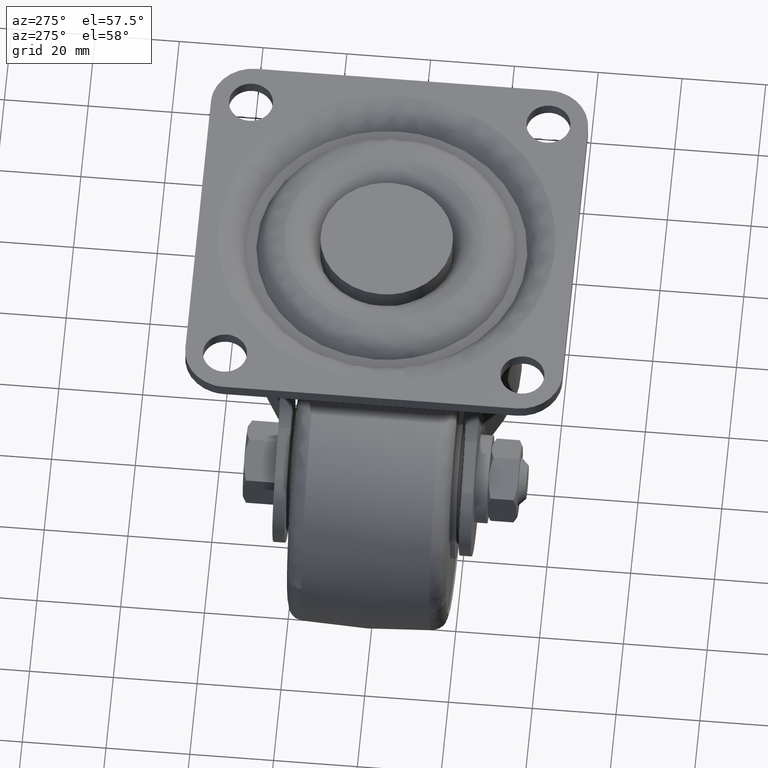
[diagram: clean part render]
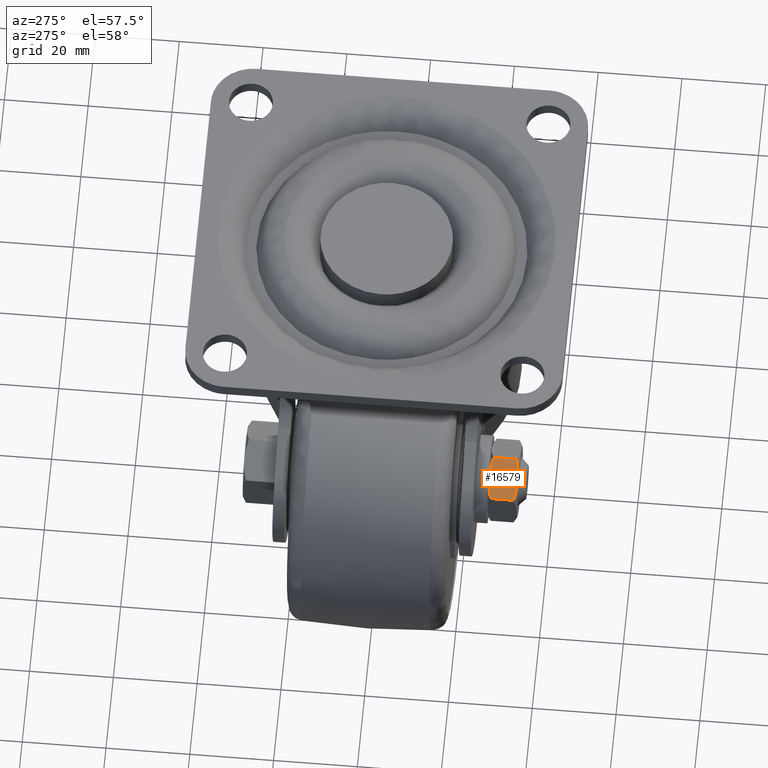
[diagram: same view with one face highlighted and labeled with its STEP entity id]
A machine part, auxiliary view. The second image highlights one B-rep face of the part: STEP entity #16579.
In plain terms, the highlighted face is a freeform B-spline surface patch.
Its self-contained STEP definition (entity closure, byte-faithful):
#15851=CARTESIAN_POINT('',(-30.500000000000000,-27.459188999999999,-63.592523000000092));
#15852=VERTEX_POINT('',#15851);
#15892=CARTESIAN_POINT('',(-30.500000000000000,-32.940811327837750,-63.592523000000092));
#15893=VERTEX_POINT('',#15892);
#15910=CARTESIAN_POINT('',(-30.500000000000000,-27.459188999999999,-63.592523000000092));
#15911=CARTESIAN_POINT('',(-30.500000000000000,-32.940811327837750,-63.592523000000092));
#15912=QUASI_UNIFORM_CURVE('',1,(#15910,#15911),.UNSPECIFIED.,.F.,.U.);
#15913=EDGE_CURVE('',#15852,#15893,#15912,.T.);
#16135=CARTESIAN_POINT('',(-26.250000491757199,-26.699999999999999,-61.138784283916202));
#16136=VERTEX_POINT('',#16135);
#16137=CARTESIAN_POINT('',(-26.250000491757199,-26.699999999999999,-61.138784283916202));
#16138=CARTESIAN_POINT('',(-26.427983855377921,-26.700001028776949,-61.241543041720327));
#16139=CARTESIAN_POINT('',(-26.606830321382361,-26.704335860304340,-61.344800111990288));
#16140=CARTESIAN_POINT('',(-26.965632943231469,-26.721670902730839,-61.551954932351080));
#16141=CARTESIAN_POINT('',(-27.145760412293239,-26.734781733685530,-61.655951590188323));
#16142=CARTESIAN_POINT('',(-27.684340324782500,-26.786679483016130,-61.966900892750999));
#16143=CARTESIAN_POINT('',(-28.040986059396239,-26.838061034627849,-62.172810433505219));
#16144=CARTESIAN_POINT('',(-29.104573683555959,-27.036468841709912,-62.786873123697710));
#16145=CARTESIAN_POINT('',(-29.805190734486910,-27.227585778547692,-63.191374625329310));
#16146=CARTESIAN_POINT('',(-30.500000044882469,-27.459188687122641,-63.592523025913003));
#16147=B_SPLINE_CURVE_WITH_KNOTS('',3,(#16137,#16138,#16139,#16140,#16141,#16142,#16143,#16144,#16145,#16146),.UNSPECIFIED.,.F.,.U.,(4,2,2,2,4),(0.500936464524502,0.562499999999999,0.624999999999999,0.750000000000000,1.0),.UNSPECIFIED.);
#16148=EDGE_CURVE('',#16136,#15852,#16147,.T.);
#16235=CARTESIAN_POINT('',(-26.250000491757149,-33.700000000000003,-61.138784283916287));
#16236=VERTEX_POINT('',#16235);
#16350=CARTESIAN_POINT('',(-22.0,-32.940810999999897,-58.685045000000002));
#16351=VERTEX_POINT('',#16350);
#16352=CARTESIAN_POINT('',(-26.250000491757149,-33.700000000000003,-61.138784283916287));
#16353=CARTESIAN_POINT('',(-26.072016798062279,-33.699998971340847,-61.036025335543712));
#16354=CARTESIAN_POINT('',(-25.893169996155770,-33.695664123485699,-60.932768071340583));
#16355=CARTESIAN_POINT('',(-25.534367044268951,-33.678329032939367,-60.725613060432380));
#16356=CARTESIAN_POINT('',(-25.354239577365298,-33.665218186164878,-60.621616403841173));
#16357=CARTESIAN_POINT('',(-24.815659671801349,-33.613320390645242,-60.310667105276814));
#16358=CARTESIAN_POINT('',(-24.459013942402262,-33.561938809969639,-60.104757567533262));
#16359=CARTESIAN_POINT('',(-23.395426335093291,-33.363530922833291,-59.490694887069537));
#16360=CARTESIAN_POINT('',(-22.694809296951451,-33.172413942456672,-59.086193392821741));
#16361=CARTESIAN_POINT('',(-21.999999999999961,-32.940811000000103,-58.685044999999988));
#16362=B_SPLINE_CURVE_WITH_KNOTS('',3,(#16352,#16353,#16354,#16355,#16356,#16357,#16358,#16359,#16360,#16361),.UNSPECIFIED.,.F.,.U.,(4,2,2,2,4),(0.500936349048356,0.562500000000004,0.625000000000004,0.750000000000002,1.0),.UNSPECIFIED.);
#16363=EDGE_CURVE('',#16236,#16351,#16362,.T.);
#16398=CARTESIAN_POINT('',(-30.500000000000000,-32.940811327837750,-63.592523000000092));
#16399=CARTESIAN_POINT('',(-29.806055711331741,-33.172125894247941,-63.191874020015959));
#16400=CARTESIAN_POINT('',(-29.107051964381942,-33.362771021776943,-62.788303960007269));
#16401=CARTESIAN_POINT('',(-28.047612607592409,-33.560850070040473,-62.176636273445077));
#16402=CARTESIAN_POINT('',(-27.692639495822320,-33.612193184016363,-61.971692422079961));
#16403=CARTESIAN_POINT('',(-26.978559153826250,-33.681648131361989,-61.559417884600172));
#16404=CARTESIAN_POINT('',(-26.619448351263610,-33.699731249221131,-61.352085135995623));
#16405=CARTESIAN_POINT('',(-26.255414358671722,-33.699998970591231,-61.141909981890109));
#16406=CARTESIAN_POINT('',(-26.252707524974209,-33.699999958347867,-61.140347190499497));
#16407=CARTESIAN_POINT('',(-26.250000491616159,-33.699999943560996,-61.138784283834809));
#16408=B_SPLINE_CURVE_WITH_KNOTS('',3,(#16398,#16399,#16400,#16401,#16402,#16403,#16404,#16405,#16406,#16407),.UNSPECIFIED.,.F.,.U.,(4,2,2,2,4),(0.0,0.250000000000003,0.375000000000003,0.500000000000004,0.500936349019816),.UNSPECIFIED.);
#16409=EDGE_CURVE('',#15893,#16236,#16408,.T.);
#16528=CARTESIAN_POINT('',(-22.0,-27.459188999999999,-58.685045000000002));
#16529=VERTEX_POINT('',#16528);
#16543=CARTESIAN_POINT('',(-22.0,-27.459188999999999,-58.685045000000002));
#16544=CARTESIAN_POINT('',(-22.0,-32.940810999999897,-58.685045000000002));
#16545=QUASI_UNIFORM_CURVE('',1,(#16543,#16544),.UNSPECIFIED.,.F.,.U.);
#16546=EDGE_CURVE('',#16529,#16351,#16545,.T.);
#16554=CARTESIAN_POINT('',(-21.575425016474629,-34.049649986432648,-58.439916483411658));
#16555=CARTESIAN_POINT('',(-30.924575211513130,-34.049649986432648,-63.837651648217268));
#16556=CARTESIAN_POINT('',(-21.575425016474629,-26.350349825812732,-58.439916483411658));
#16557=CARTESIAN_POINT('',(-30.924575211513130,-26.350349825812732,-63.837651648217268));
#16558=B_SPLINE_SURFACE_WITH_KNOTS('',1,1,((#16554,#16556),(#16555,#16557)),.UNSPECIFIED.,.F.,.F.,.U.,(2,2),(2,2),(0.0,10.795469155102399),(0.0,7.699300160619917),.UNSPECIFIED.);
#16559=CARTESIAN_POINT('',(-22.0,-27.459188999999999,-58.685045000000002));
#16560=CARTESIAN_POINT('',(-22.693944282312749,-27.227874395560999,-59.085693976314822));
#16561=CARTESIAN_POINT('',(-23.392948023857599,-27.037229220802949,-59.489264033202922));
#16562=CARTESIAN_POINT('',(-24.452387375458461,-26.839150088763329,-60.100931716769487));
#16563=CARTESIAN_POINT('',(-24.807360485997840,-26.787806944791580,-60.305875567424010));
#16564=CARTESIAN_POINT('',(-25.521440826913530,-26.718351934794491,-60.718150104280042));
#16565=CARTESIAN_POINT('',(-25.880551629629370,-26.700268784290920,-60.925482852973033));
#16566=CARTESIAN_POINT('',(-26.244585957081469,-26.700001029654299,-61.135658200410212));
#16567=CARTESIAN_POINT('',(-26.247293124635242,-26.700000041653968,-61.137221184552857));
#16568=CARTESIAN_POINT('',(-26.250000491898192,-26.700000056444399,-61.138784283997673));
#16569=B_SPLINE_CURVE_WITH_KNOTS('',3,(#16559,#16560,#16561,#16562,#16563,#16564,#16565,#16566,#16567,#16568),.UNSPECIFIED.,.F.,.U.,(4,2,2,2,4),(0.0,0.250000000000000,0.375000000000000,0.499999999999999,0.500936464495962),.UNSPECIFIED.);
#16570=EDGE_CURVE('',#16529,#16136,#16569,.T.);
#16571=ORIENTED_EDGE('',*,*,#16570,.T.);
#16572=ORIENTED_EDGE('',*,*,#16148,.T.);
#16573=ORIENTED_EDGE('',*,*,#15913,.T.);
#16574=ORIENTED_EDGE('',*,*,#16409,.T.);
#16575=ORIENTED_EDGE('',*,*,#16363,.T.);
#16576=ORIENTED_EDGE('',*,*,#16546,.F.);
#16577=EDGE_LOOP('',(#16571,#16572,#16573,#16574,#16575,#16576));
#16578=FACE_OUTER_BOUND('',#16577,.T.);
#16579=ADVANCED_FACE('',(#16578),#16558,.F.);